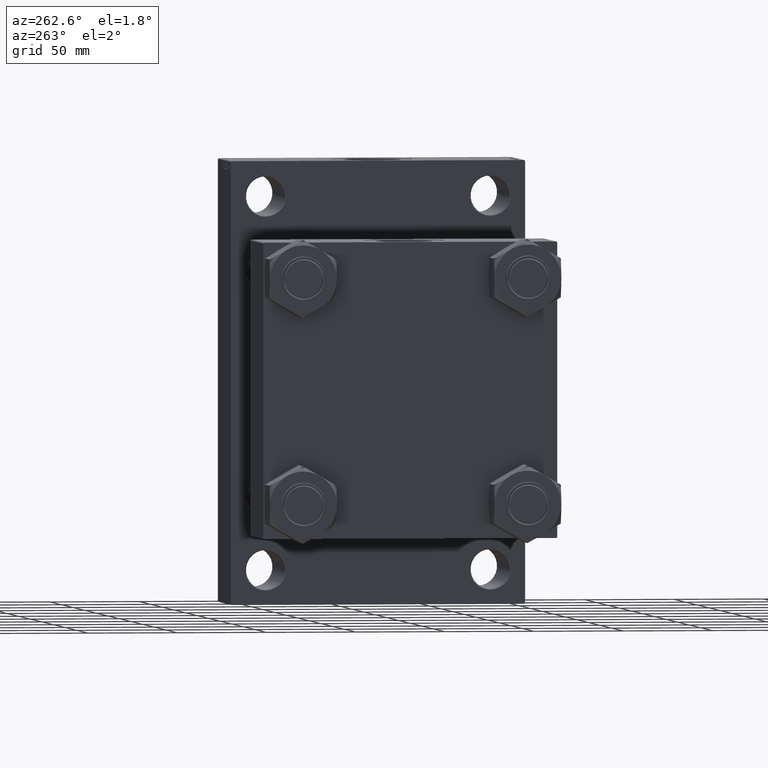
[diagram: clean part render]
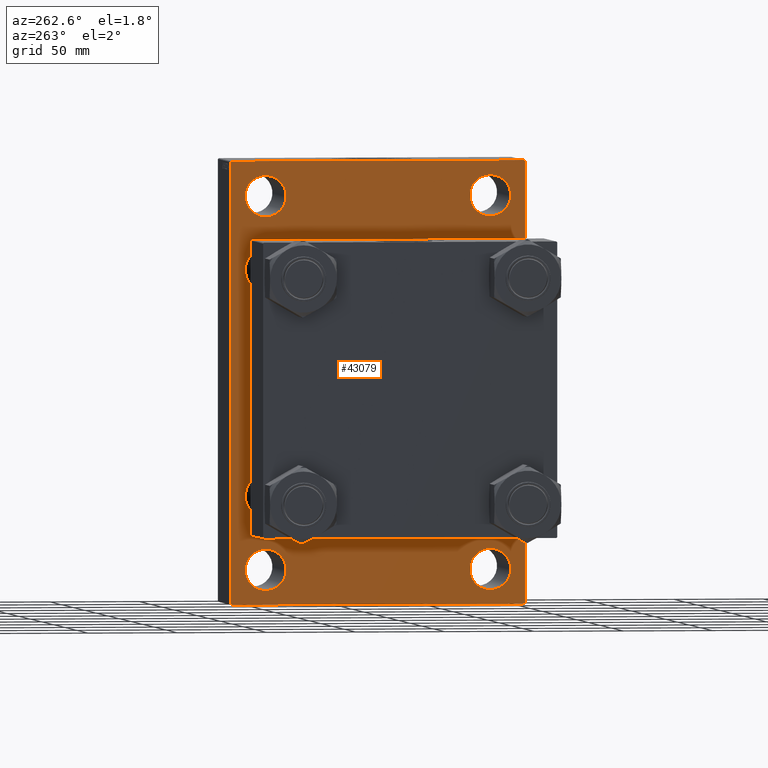
[diagram: same view with one face highlighted and labeled with its STEP entity id]
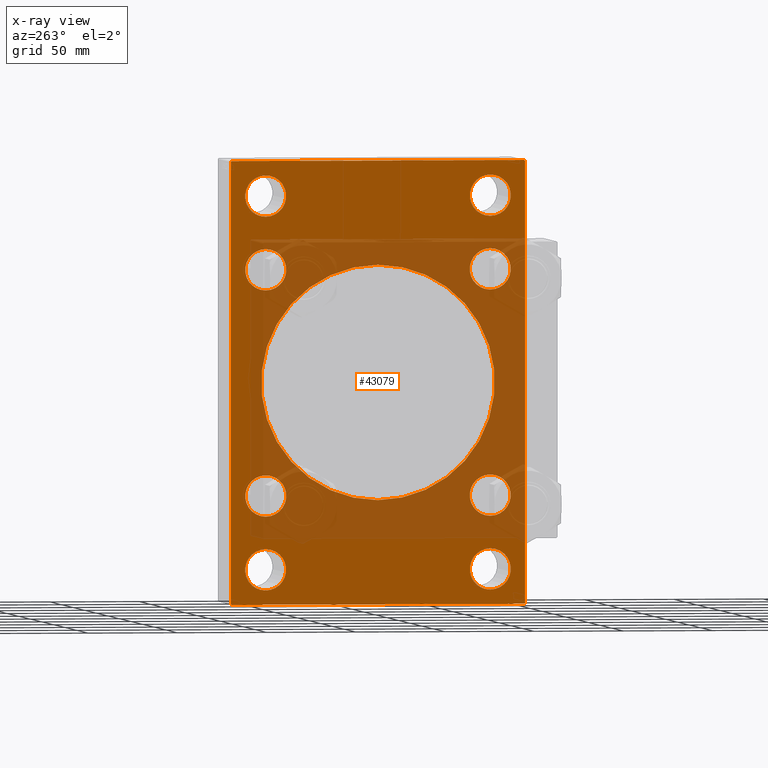
[diagram: x-ray of the same camera — body ghosted, the highlighted face saturated]
A machine part, auxiliary view. The second image highlights one B-rep face of the part: STEP entity #43079.
The next image is the same camera in x-ray: the body ghosted, the highlighted face saturated — about 45% of this face is hidden behind the body in this view.
In plain terms, the highlighted planar face has unit normal (-1, 0, 0).
Its self-contained STEP definition (entity closure, byte-faithful):
#338 = AXIS2_PLACEMENT_3D ( 'NONE', #1458, #8941, #16403 ) ;
#341 = EDGE_CURVE ( 'NONE', #12616, #39396, #31905, .T. ) ;
#533 = VERTEX_POINT ( 'NONE', #44811 ) ;
#567 = CARTESIAN_POINT ( 'NONE',  ( 139.0000000000000000, 62.99999999999998579, -104.0000000000000142 ) ) ;
#707 = CARTESIAN_POINT ( 'NONE',  ( 139.0000000000000000, -102.7499999999977689, -102.7500000000034959 ) ) ;
#804 = DIRECTION ( 'NONE',  ( 0.000000000000000000, 0.000000000000000000, 1.000000000000000000 ) ) ;
#1086 = EDGE_LOOP ( 'NONE', ( #37666, #37168 ) ) ;
#1102 = DIRECTION ( 'NONE',  ( 1.000000000000000000, -0.000000000000000000, 0.000000000000000000 ) ) ;
#1263 = ORIENTED_EDGE ( 'NONE', *, *, #14553, .T. ) ;
#1458 = CARTESIAN_POINT ( 'NONE',  ( 139.0000000000000000, 62.94999999999998863, 62.95000000000000284 ) ) ;
#1573 = CARTESIAN_POINT ( 'NONE',  ( 139.0000000000000000, 82.49999999999995737, -123.0000000000001279 ) ) ;
#1782 = FACE_BOUND ( 'NONE', #21349, .T. ) ;
#2014 = VECTOR ( 'NONE', #20928, 1000.000000000000000 ) ;
#2023 = DIRECTION ( 'NONE',  ( -1.000000000000000000, 0.000000000000000000, -0.000000000000000000 ) ) ;
#2449 = CIRCLE ( 'NONE', #21699, 11.50000000000001066 ) ;
#2965 = AXIS2_PLACEMENT_3D ( 'NONE', #16491, #2023, #45902 ) ;
#3069 = EDGE_LOOP ( 'NONE', ( #31641, #32075 ) ) ;
#3073 = EDGE_CURVE ( 'NONE', #45881, #32431, #10509, .T. ) ;
#3859 = ORIENTED_EDGE ( 'NONE', *, *, #21880, .T. ) ;
#4280 = VERTEX_POINT ( 'NONE', #21389 ) ;
#4325 = LINE ( 'NONE', #707, #34246 ) ;
#4547 = CARTESIAN_POINT ( 'NONE',  ( 139.0000000000000000, 62.94999999999998863, -62.95000000000000284 ) ) ;
#4750 = CARTESIAN_POINT ( 'NONE',  ( 139.0000000000000000, 102.7500000000000142, 102.7500000000000142 ) ) ;
#4935 = DIRECTION ( 'NONE',  ( 0.000000000000000000, 0.000000000000000000, 1.000000000000000000 ) ) ;
#5121 = ORIENTED_EDGE ( 'NONE', *, *, #21465, .T. ) ;
#5298 = ORIENTED_EDGE ( 'NONE', *, *, #31909, .T. ) ;
#5547 = DIRECTION ( 'NONE',  ( 1.000000000000000000, -0.000000000000000000, 0.000000000000000000 ) ) ;
#5835 = EDGE_CURVE ( 'NONE', #34692, #17578, #2449, .T. ) ;
#5855 = CARTESIAN_POINT ( 'NONE',  ( 139.0000000000000000, -82.50000000000002842, 123.4999999999999716 ) ) ;
#6019 = ORIENTED_EDGE ( 'NONE', *, *, #18634, .T. ) ;
#6179 = CIRCLE ( 'NONE', #33108, 11.50000000000001066 ) ;
#6237 = CARTESIAN_POINT ( 'NONE',  ( 139.0000000000000000, 102.7499999999966320, -102.7500000000051870 ) ) ;
#6372 = ORIENTED_EDGE ( 'NONE', *, *, #27215, .T. ) ;
#6382 = PLANE ( 'NONE',  #2965 ) ;
#7521 = VERTEX_POINT ( 'NONE', #30968 ) ;
#7525 = ORIENTED_EDGE ( 'NONE', *, *, #5835, .T. ) ;
#7697 = DIRECTION ( 'NONE',  ( 1.000000000000000000, -0.000000000000000000, 0.000000000000000000 ) ) ;
#8374 = EDGE_LOOP ( 'NONE', ( #18874, #6019 ) ) ;
#8428 = CARTESIAN_POINT ( 'NONE',  ( 139.0000000000000000, 62.99999999999998579, -92.50000000000000000 ) ) ;
#8460 = VERTEX_POINT ( 'NONE', #47403 ) ;
#8552 = CARTESIAN_POINT ( 'NONE',  ( 139.0000000000000000, -2.602085213965210642E-15, 0.000000000000000000 ) ) ;
#8683 = VERTEX_POINT ( 'NONE', #1573 ) ;
#8796 = CARTESIAN_POINT ( 'NONE',  ( 139.0000000000000000, -62.94999999999996732, -62.95000000000001705 ) ) ;
#8886 = CIRCLE ( 'NONE', #41983, 11.49999999999999645 ) ;
#8928 = ORIENTED_EDGE ( 'NONE', *, *, #13958, .T. ) ;
#8941 = DIRECTION ( 'NONE',  ( 1.000000000000000000, -0.000000000000000000, 0.000000000000000000 ) ) ;
#9047 = VERTEX_POINT ( 'NONE', #18298 ) ;
#9209 = CARTESIAN_POINT ( 'NONE',  ( 139.0000000000000000, -82.50000000000002842, -123.0000000000001137 ) ) ;
#9295 = CARTESIAN_POINT ( 'NONE',  ( 139.0000000000000000, -63.00000000000001421, -104.0000000000000142 ) ) ;
#9367 = CARTESIAN_POINT ( 'NONE',  ( 139.0000000000000000, 62.94999999999998863, -74.45000000000000284 ) ) ;
#9712 = CIRCLE ( 'NONE', #43577, 11.50000000000001066 ) ;
#9745 = CARTESIAN_POINT ( 'NONE',  ( 139.0000000000000000, -82.00000000000001421, 123.4999999999999716 ) ) ;
#10074 = DIRECTION ( 'NONE',  ( 0.000000000000000000, -1.000000000000000000, -8.410780489584520404E-17 ) ) ;
#10436 = LINE ( 'NONE', #43232, #45873 ) ;
#10473 = CARTESIAN_POINT ( 'NONE',  ( 139.0000000000000000, -63.00000000000001421, -92.50000000000000000 ) ) ;
#10509 = CIRCLE ( 'NONE', #22834, 11.50000000000001066 ) ;
#10529 = CIRCLE ( 'NONE', #19744, 11.50000000000001066 ) ;
#10851 = CARTESIAN_POINT ( 'NONE',  ( 139.0000000000000000, 82.49999999999995737, 123.0000000000000426 ) ) ;
#11012 = CARTESIAN_POINT ( 'NONE',  ( 139.0000000000000000, -2.602085213965210642E-15, 0.000000000000000000 ) ) ;
#11210 = LINE ( 'NONE', #25677, #40410 ) ;
#11553 = DIRECTION ( 'NONE',  ( 0.000000000000000000, 0.000000000000000000, 1.000000000000000000 ) ) ;
#11859 = CARTESIAN_POINT ( 'NONE',  ( 139.0000000000000000, -62.94999999999996732, 51.45000000000000995 ) ) ;
#12160 = AXIS2_PLACEMENT_3D ( 'NONE', #38578, #5547, #20244 ) ;
#12287 = ORIENTED_EDGE ( 'NONE', *, *, #21608, .F. ) ;
#12411 = DIRECTION ( 'NONE',  ( 1.000000000000000000, -0.000000000000000000, 0.000000000000000000 ) ) ;
#12616 = VERTEX_POINT ( 'NONE', #21700 ) ;
#12819 = CIRCLE ( 'NONE', #39794, 11.50000000000001066 ) ;
#12974 = VERTEX_POINT ( 'NONE', #29816 ) ;
#12987 = CARTESIAN_POINT ( 'NONE',  ( 139.0000000000000000, 5.419351320449953395E-15, -65.50000000000001421 ) ) ;
#13093 = DIRECTION ( 'NONE',  ( 0.000000000000000000, -1.000000000000000000, -8.410780489584520404E-17 ) ) ;
#13221 = DIRECTION ( 'NONE',  ( 0.000000000000000000, 0.000000000000000000, 1.000000000000000000 ) ) ;
#13670 = EDGE_LOOP ( 'NONE', ( #19775, #38627 ) ) ;
#13772 = AXIS2_PLACEMENT_3D ( 'NONE', #31544, #46247, #13221 ) ;
#13958 = EDGE_CURVE ( 'NONE', #18829, #18057, #11210, .T. ) ;
#14379 = VECTOR ( 'NONE', #10074, 1000.000000000000000 ) ;
#14553 = EDGE_CURVE ( 'NONE', #27533, #36277, #4325, .T. ) ;
#15036 = DIRECTION ( 'NONE',  ( 1.000000000000000000, -0.000000000000000000, 0.000000000000000000 ) ) ;
#15096 = DIRECTION ( 'NONE',  ( 1.000000000000000000, 0.000000000000000000, 0.000000000000000000 ) ) ;
#15140 = CIRCLE ( 'NONE', #42090, 11.49999999999999645 ) ;
#15254 = VERTEX_POINT ( 'NONE', #28019 ) ;
#15810 = DIRECTION ( 'NONE',  ( 0.000000000000000000, 0.000000000000000000, 1.000000000000000000 ) ) ;
#16055 = CARTESIAN_POINT ( 'NONE',  ( 139.0000000000000000, -63.00000000000001421, 104.0000000000000000 ) ) ;
#16065 = EDGE_CURVE ( 'NONE', #15254, #46159, #9712, .T. ) ;
#16151 = CARTESIAN_POINT ( 'NONE',  ( 139.0000000000000000, 62.99999999999998579, 103.9999999999999858 ) ) ;
#16403 = DIRECTION ( 'NONE',  ( 0.000000000000000000, 0.000000000000000000, 1.000000000000000000 ) ) ;
#16491 = CARTESIAN_POINT ( 'NONE',  ( 139.0000000000000000, 0.000000000000000000, 0.000000000000000000 ) ) ;
#16704 = CARTESIAN_POINT ( 'NONE',  ( 139.0000000000000000, 82.49999999999995737, -123.5000000000000284 ) ) ;
#16842 = EDGE_CURVE ( 'NONE', #8683, #533, #39259, .T. ) ;
#17193 = LINE ( 'NONE', #16704, #42998 ) ;
#17236 = EDGE_LOOP ( 'NONE', ( #5121, #20027 ) ) ;
#17477 = VERTEX_POINT ( 'NONE', #29883 ) ;
#17578 = VERTEX_POINT ( 'NONE', #8428 ) ;
#17579 = CARTESIAN_POINT ( 'NONE',  ( 139.0000000000000000, 62.94999999999998863, 62.95000000000000284 ) ) ;
#18057 = VERTEX_POINT ( 'NONE', #9745 ) ;
#18116 = CARTESIAN_POINT ( 'NONE',  ( 139.0000000000000000, -62.94999999999996732, -62.95000000000001705 ) ) ;
#18298 = CARTESIAN_POINT ( 'NONE',  ( 139.0000000000000000, -62.94999999999996732, -74.45000000000001705 ) ) ;
#18634 = EDGE_CURVE ( 'NONE', #39396, #12616, #15140, .T. ) ;
#18829 = VERTEX_POINT ( 'NONE', #20608 ) ;
#18874 = ORIENTED_EDGE ( 'NONE', *, *, #341, .T. ) ;
#19151 = DIRECTION ( 'NONE',  ( 1.000000000000000000, 0.000000000000000000, 0.000000000000000000 ) ) ;
#19202 = AXIS2_PLACEMENT_3D ( 'NONE', #39033, #27698, #42399 ) ;
#19744 = AXIS2_PLACEMENT_3D ( 'NONE', #29865, #7697, #11553 ) ;
#19775 = ORIENTED_EDGE ( 'NONE', *, *, #3073, .T. ) ;
#19842 = CARTESIAN_POINT ( 'NONE',  ( 139.0000000000000000, -63.00000000000001421, -104.0000000000000142 ) ) ;
#20027 = ORIENTED_EDGE ( 'NONE', *, *, #38331, .T. ) ;
#20074 = ORIENTED_EDGE ( 'NONE', *, *, #22774, .T. ) ;
#20115 = FACE_BOUND ( 'NONE', #8374, .T. ) ;
#20244 = DIRECTION ( 'NONE',  ( 0.000000000000000000, 0.000000000000000000, 1.000000000000000000 ) ) ;
#20596 = FACE_BOUND ( 'NONE', #29612, .T. ) ;
#20608 = CARTESIAN_POINT ( 'NONE',  ( 139.0000000000000000, -82.50000000000002842, 123.0000000000000284 ) ) ;
#20858 = DIRECTION ( 'NONE',  ( 1.000000000000000000, -0.000000000000000000, 0.000000000000000000 ) ) ;
#20928 = DIRECTION ( 'NONE',  ( -0.000000000000000000, -0.7071067811865769936, -0.7071067811865181518 ) ) ;
#20952 = EDGE_CURVE ( 'NONE', #18829, #36277, #47290, .T. ) ;
#20980 = ORIENTED_EDGE ( 'NONE', *, *, #44536, .T. ) ;
#21349 = EDGE_LOOP ( 'NONE', ( #5298, #29651 ) ) ;
#21389 = CARTESIAN_POINT ( 'NONE',  ( 139.0000000000000000, 62.99999999999998579, 115.4999999999999858 ) ) ;
#21407 = EDGE_CURVE ( 'NONE', #32431, #45881, #10529, .T. ) ;
#21465 = EDGE_CURVE ( 'NONE', #28433, #25966, #32083, .T. ) ;
#21566 = EDGE_LOOP ( 'NONE', ( #28541, #1263, #28532, #8928, #12287, #20980, #44587, #32038 ) ) ;
#21608 = EDGE_CURVE ( 'NONE', #12974, #18057, #25008, .T. ) ;
#21699 = AXIS2_PLACEMENT_3D ( 'NONE', #43411, #35700, #46780 ) ;
#21700 = CARTESIAN_POINT ( 'NONE',  ( 139.0000000000000000, 62.94999999999998863, 74.45000000000000284 ) ) ;
#21880 = EDGE_CURVE ( 'NONE', #28268, #25605, #12819, .T. ) ;
#22215 = DIRECTION ( 'NONE',  ( 0.000000000000000000, 0.000000000000000000, 1.000000000000000000 ) ) ;
#22774 = EDGE_CURVE ( 'NONE', #17477, #45122, #32108, .T. ) ;
#22834 = AXIS2_PLACEMENT_3D ( 'NONE', #16055, #1102, #15810 ) ;
#22890 = CIRCLE ( 'NONE', #46006, 11.50000000000001066 ) ;
#23150 = DIRECTION ( 'NONE',  ( 0.000000000000000000, 0.000000000000000000, 1.000000000000000000 ) ) ;
#23282 = CARTESIAN_POINT ( 'NONE',  ( 139.0000000000000000, -63.00000000000001421, 92.49999999999998579 ) ) ;
#24325 = VECTOR ( 'NONE', #35265, 1000.000000000000000 ) ;
#24354 = EDGE_LOOP ( 'NONE', ( #6372, #7525 ) ) ;
#24686 = LINE ( 'NONE', #4750, #26872 ) ;
#24907 = DIRECTION ( 'NONE',  ( 0.000000000000000000, 0.000000000000000000, -1.000000000000000000 ) ) ;
#25008 = LINE ( 'NONE', #31525, #14379 ) ;
#25403 = AXIS2_PLACEMENT_3D ( 'NONE', #11012, #15096, #36806 ) ;
#25605 = VERTEX_POINT ( 'NONE', #11859 ) ;
#25677 = CARTESIAN_POINT ( 'NONE',  ( 139.0000000000000000, -102.7499999999942872, 102.7500000000085549 ) ) ;
#25966 = VERTEX_POINT ( 'NONE', #9367 ) ;
#26436 = EDGE_LOOP ( 'NONE', ( #20074, #44901 ) ) ;
#26872 = VECTOR ( 'NONE', #30543, 1000.000000000000114 ) ;
#27215 = EDGE_CURVE ( 'NONE', #17578, #34692, #32251, .T. ) ;
#27533 = VERTEX_POINT ( 'NONE', #44391 ) ;
#27587 = FACE_OUTER_BOUND ( 'NONE', #21566, .T. ) ;
#27698 = DIRECTION ( 'NONE',  ( 1.000000000000000000, -0.000000000000000000, 0.000000000000000000 ) ) ;
#27735 = CIRCLE ( 'NONE', #25403, 65.50000000000001421 ) ;
#28019 = CARTESIAN_POINT ( 'NONE',  ( 139.0000000000000000, -63.00000000000001421, -115.5000000000000142 ) ) ;
#28037 = CARTESIAN_POINT ( 'NONE',  ( 139.0000000000000000, 62.94999999999998863, 51.45000000000000995 ) ) ;
#28063 = FACE_BOUND ( 'NONE', #13670, .T. ) ;
#28193 = DIRECTION ( 'NONE',  ( 0.000000000000000000, 0.000000000000000000, 1.000000000000000000 ) ) ;
#28268 = VERTEX_POINT ( 'NONE', #38890 ) ;
#28282 = DIRECTION ( 'NONE',  ( 1.000000000000000000, -0.000000000000000000, 0.000000000000000000 ) ) ;
#28433 = VERTEX_POINT ( 'NONE', #33314 ) ;
#28532 = ORIENTED_EDGE ( 'NONE', *, *, #20952, .F. ) ;
#28541 = ORIENTED_EDGE ( 'NONE', *, *, #39270, .T. ) ;
#28554 = FACE_BOUND ( 'NONE', #1086, .T. ) ;
#29612 = EDGE_LOOP ( 'NONE', ( #3859, #46978 ) ) ;
#29651 = ORIENTED_EDGE ( 'NONE', *, *, #36649, .T. ) ;
#29816 = CARTESIAN_POINT ( 'NONE',  ( 139.0000000000000000, 82.00000000000001421, 123.4999999999999858 ) ) ;
#29865 = CARTESIAN_POINT ( 'NONE',  ( 139.0000000000000000, -63.00000000000001421, 104.0000000000000000 ) ) ;
#29883 = CARTESIAN_POINT ( 'NONE',  ( 139.0000000000000000, -2.602085213965210642E-15, 65.50000000000001421 ) ) ;
#30543 = DIRECTION ( 'NONE',  ( 0.000000000000000000, 0.7071067811865474617, -0.7071067811865474617 ) ) ;
#30548 = AXIS2_PLACEMENT_3D ( 'NONE', #8552, #19151, #34567 ) ;
#30623 = CIRCLE ( 'NONE', #12160, 11.49999999999999645 ) ;
#30703 = CIRCLE ( 'NONE', #13772, 11.50000000000001066 ) ;
#30968 = CARTESIAN_POINT ( 'NONE',  ( 139.0000000000000000, 62.99999999999998579, 92.49999999999997158 ) ) ;
#31158 = DIRECTION ( 'NONE',  ( 1.000000000000000000, -0.000000000000000000, 0.000000000000000000 ) ) ;
#31196 = FACE_BOUND ( 'NONE', #24354, .T. ) ;
#31519 = CIRCLE ( 'NONE', #19202, 11.50000000000001066 ) ;
#31525 = CARTESIAN_POINT ( 'NONE',  ( 139.0000000000000000, 82.49999999999995737, 123.4999999999999858 ) ) ;
#31544 = CARTESIAN_POINT ( 'NONE',  ( 139.0000000000000000, -62.94999999999996732, 62.95000000000001705 ) ) ;
#31641 = ORIENTED_EDGE ( 'NONE', *, *, #37418, .T. ) ;
#31892 = CARTESIAN_POINT ( 'NONE',  ( 139.0000000000000000, -62.94999999999996732, 62.95000000000001705 ) ) ;
#31905 = CIRCLE ( 'NONE', #338, 11.49999999999999645 ) ;
#31909 = EDGE_CURVE ( 'NONE', #8460, #9047, #8886, .T. ) ;
#32038 = ORIENTED_EDGE ( 'NONE', *, *, #16842, .T. ) ;
#32075 = ORIENTED_EDGE ( 'NONE', *, *, #41328, .T. ) ;
#32083 = CIRCLE ( 'NONE', #43644, 11.49999999999999645 ) ;
#32108 = CIRCLE ( 'NONE', #30548, 65.50000000000001421 ) ;
#32251 = CIRCLE ( 'NONE', #34546, 11.50000000000001066 ) ;
#32431 = VERTEX_POINT ( 'NONE', #23282 ) ;
#33108 = AXIS2_PLACEMENT_3D ( 'NONE', #19842, #31158, #804 ) ;
#33314 = CARTESIAN_POINT ( 'NONE',  ( 139.0000000000000000, 62.94999999999998863, -51.45000000000000995 ) ) ;
#33814 = EDGE_CURVE ( 'NONE', #34056, #8683, #10436, .T. ) ;
#33959 = DIRECTION ( 'NONE',  ( 0.000000000000000000, 0.000000000000000000, 1.000000000000000000 ) ) ;
#34056 = VERTEX_POINT ( 'NONE', #10851 ) ;
#34246 = VECTOR ( 'NONE', #37364, 1000.000000000000000 ) ;
#34416 = CIRCLE ( 'NONE', #45192, 11.49999999999999645 ) ;
#34546 = AXIS2_PLACEMENT_3D ( 'NONE', #567, #15036, #36751 ) ;
#34567 = DIRECTION ( 'NONE',  ( 0.000000000000000000, 0.000000000000000000, -1.000000000000000000 ) ) ;
#34692 = VERTEX_POINT ( 'NONE', #45951 ) ;
#34822 = FACE_BOUND ( 'NONE', #17236, .T. ) ;
#35265 = DIRECTION ( 'NONE',  ( 0.000000000000000000, 0.000000000000000000, -1.000000000000000000 ) ) ;
#35700 = DIRECTION ( 'NONE',  ( 1.000000000000000000, -0.000000000000000000, 0.000000000000000000 ) ) ;
#36277 = VERTEX_POINT ( 'NONE', #9209 ) ;
#36649 = EDGE_CURVE ( 'NONE', #9047, #8460, #34416, .T. ) ;
#36751 = DIRECTION ( 'NONE',  ( 0.000000000000000000, 0.000000000000000000, 1.000000000000000000 ) ) ;
#36806 = DIRECTION ( 'NONE',  ( 0.000000000000000000, 0.000000000000000000, -1.000000000000000000 ) ) ;
#37168 = ORIENTED_EDGE ( 'NONE', *, *, #16065, .T. ) ;
#37364 = DIRECTION ( 'NONE',  ( 0.000000000000000000, -0.7071067811865672237, 0.7071067811865279218 ) ) ;
#37418 = EDGE_CURVE ( 'NONE', #4280, #7521, #22890, .T. ) ;
#37666 = ORIENTED_EDGE ( 'NONE', *, *, #47255, .T. ) ;
#37818 = DIRECTION ( 'NONE',  ( 1.000000000000000000, -0.000000000000000000, 0.000000000000000000 ) ) ;
#38331 = EDGE_CURVE ( 'NONE', #25966, #28433, #30623, .T. ) ;
#38578 = CARTESIAN_POINT ( 'NONE',  ( 139.0000000000000000, 62.94999999999998863, -62.95000000000000284 ) ) ;
#38627 = ORIENTED_EDGE ( 'NONE', *, *, #21407, .T. ) ;
#38890 = CARTESIAN_POINT ( 'NONE',  ( 139.0000000000000000, -62.94999999999996732, 74.45000000000003126 ) ) ;
#39033 = CARTESIAN_POINT ( 'NONE',  ( 139.0000000000000000, 62.99999999999998579, 103.9999999999999858 ) ) ;
#39050 = DIRECTION ( 'NONE',  ( 1.000000000000000000, -0.000000000000000000, 0.000000000000000000 ) ) ;
#39259 = LINE ( 'NONE', #6237, #2014 ) ;
#39270 = EDGE_CURVE ( 'NONE', #533, #27533, #17193, .T. ) ;
#39396 = VERTEX_POINT ( 'NONE', #28037 ) ;
#39794 = AXIS2_PLACEMENT_3D ( 'NONE', #31892, #28282, #42989 ) ;
#40302 = DIRECTION ( 'NONE',  ( 1.000000000000000000, -0.000000000000000000, 0.000000000000000000 ) ) ;
#40410 = VECTOR ( 'NONE', #47132, 1000.000000000000114 ) ;
#40458 = EDGE_CURVE ( 'NONE', #25605, #28268, #30703, .T. ) ;
#41328 = EDGE_CURVE ( 'NONE', #7521, #4280, #31519, .T. ) ;
#41983 = AXIS2_PLACEMENT_3D ( 'NONE', #18116, #40302, #22215 ) ;
#42090 = AXIS2_PLACEMENT_3D ( 'NONE', #17579, #39050, #28193 ) ;
#42358 = CARTESIAN_POINT ( 'NONE',  ( 139.0000000000000000, -63.00000000000001421, 115.5000000000000000 ) ) ;
#42399 = DIRECTION ( 'NONE',  ( 0.000000000000000000, 0.000000000000000000, 1.000000000000000000 ) ) ;
#42557 = DIRECTION ( 'NONE',  ( 0.000000000000000000, 0.000000000000000000, 1.000000000000000000 ) ) ;
#42765 = FACE_BOUND ( 'NONE', #26436, .T. ) ;
#42989 = DIRECTION ( 'NONE',  ( 0.000000000000000000, 0.000000000000000000, 1.000000000000000000 ) ) ;
#42998 = VECTOR ( 'NONE', #13093, 1000.000000000000000 ) ;
#43079 = ADVANCED_FACE ( 'NONE', ( #28063, #28554, #31196, #46143, #20596, #20115, #34822, #1782, #42765, #27587 ), #6382, .T. ) ;
#43232 = CARTESIAN_POINT ( 'NONE',  ( 139.0000000000000000, 82.49999999999995737, 123.4999999999999858 ) ) ;
#43411 = CARTESIAN_POINT ( 'NONE',  ( 139.0000000000000000, 62.99999999999998579, -104.0000000000000142 ) ) ;
#43577 = AXIS2_PLACEMENT_3D ( 'NONE', #9295, #20858, #42557 ) ;
#43644 = AXIS2_PLACEMENT_3D ( 'NONE', #4547, #37818, #33959 ) ;
#44391 = CARTESIAN_POINT ( 'NONE',  ( 139.0000000000000000, -82.00000000000007105, -123.5000000000000426 ) ) ;
#44536 = EDGE_CURVE ( 'NONE', #12974, #34056, #24686, .T. ) ;
#44587 = ORIENTED_EDGE ( 'NONE', *, *, #33814, .T. ) ;
#44811 = CARTESIAN_POINT ( 'NONE',  ( 139.0000000000000000, 82.00000000000001421, -123.5000000000000284 ) ) ;
#44901 = ORIENTED_EDGE ( 'NONE', *, *, #46943, .T. ) ;
#45122 = VERTEX_POINT ( 'NONE', #12987 ) ;
#45192 = AXIS2_PLACEMENT_3D ( 'NONE', #8796, #12411, #4935 ) ;
#45786 = DIRECTION ( 'NONE',  ( 1.000000000000000000, -0.000000000000000000, 0.000000000000000000 ) ) ;
#45873 = VECTOR ( 'NONE', #24907, 1000.000000000000000 ) ;
#45881 = VERTEX_POINT ( 'NONE', #42358 ) ;
#45902 = DIRECTION ( 'NONE',  ( -0.000000000000000000, 0.000000000000000000, 1.000000000000000000 ) ) ;
#45951 = CARTESIAN_POINT ( 'NONE',  ( 139.0000000000000000, 62.99999999999998579, -115.5000000000000142 ) ) ;
#46006 = AXIS2_PLACEMENT_3D ( 'NONE', #16151, #45786, #23150 ) ;
#46143 = FACE_BOUND ( 'NONE', #3069, .T. ) ;
#46159 = VERTEX_POINT ( 'NONE', #10473 ) ;
#46247 = DIRECTION ( 'NONE',  ( 1.000000000000000000, -0.000000000000000000, 0.000000000000000000 ) ) ;
#46780 = DIRECTION ( 'NONE',  ( 0.000000000000000000, 0.000000000000000000, 1.000000000000000000 ) ) ;
#46943 = EDGE_CURVE ( 'NONE', #45122, #17477, #27735, .T. ) ;
#46978 = ORIENTED_EDGE ( 'NONE', *, *, #40458, .T. ) ;
#47132 = DIRECTION ( 'NONE',  ( -0.000000000000000000, 0.7071067811865965336, 0.7071067811864985009 ) ) ;
#47255 = EDGE_CURVE ( 'NONE', #46159, #15254, #6179, .T. ) ;
#47290 = LINE ( 'NONE', #5855, #24325 ) ;
#47403 = CARTESIAN_POINT ( 'NONE',  ( 139.0000000000000000, -62.94999999999996732, -51.45000000000002416 ) ) ;